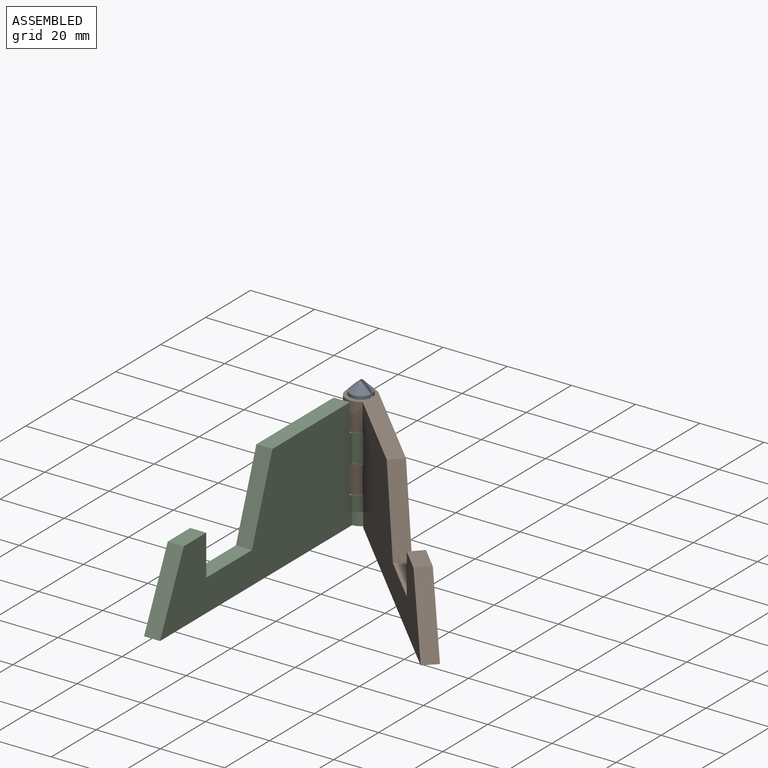
[diagram: assembled view]
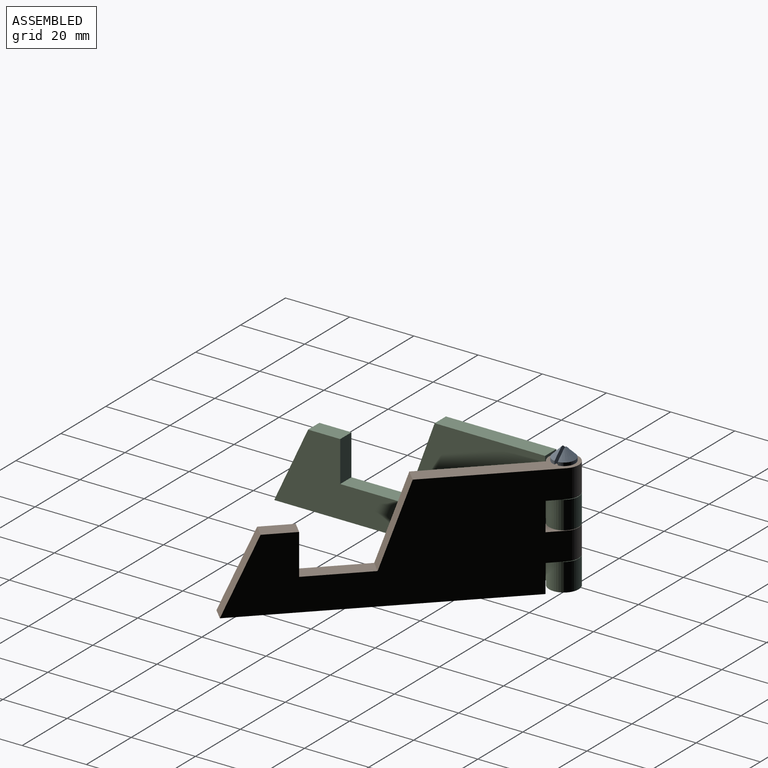
[diagram: assembled view, second angle]
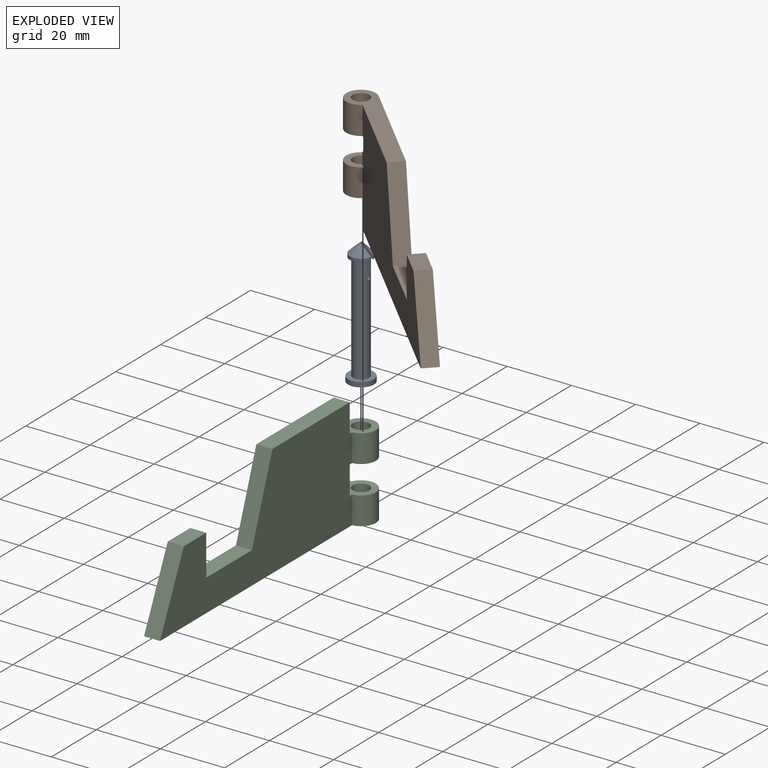
[diagram: exploded view]
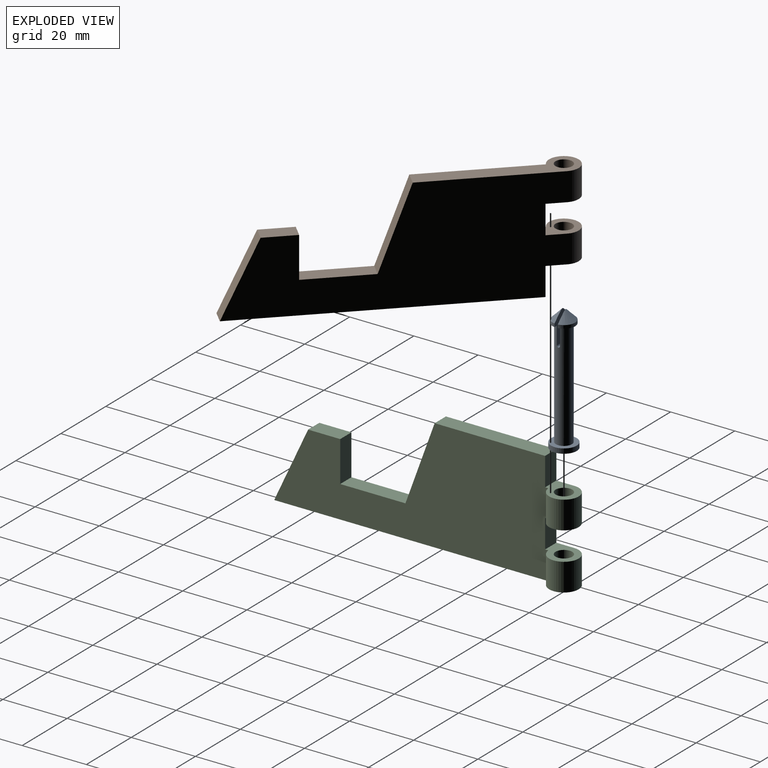
[diagram: exploded view, second angle]
ASSEMBLY  parts=3 mates=2
PART A: 13 faces, bbox 8x8x39 mm
  f0: cylinder r=3.5mm len=6.93mm, axis (0,0,-1), area 10mm2, adj f1,f2,f11
  f1: plane 6.93x3mm, normal (0,0,-1), area 8.4mm2, adj f0,f8,f11
  f2: cone r=3.5mm half-angle=45deg, axis (0,0,-1), area 22.3mm2, adj f0,f11
  f3: plane 8x8mm, normal (0,0,1), area 30.6mm2, adj f4,f8
  f4: cylinder r=4mm len=8mm, axis (0,0,-1), area 37.7mm2, adj f3,f5
  f5: plane 8x8mm, normal (0,0,-1), area 50.3mm2, adj f4
  f6: cylinder r=3.5mm len=6.93mm, axis (0,0,-1), area 10mm2, adj f7,f9,f10
  f7: plane 6.93x3mm, normal (0,0,-1), area 8.4mm2, adj f6,f8,f10
  f8: cylinder r=2.5mm len=33.5mm, axis (0,0,-1), area 514.6mm2, adj f1,f3,f7,f10,f11,f12
  f9: cone r=3.5mm half-angle=45deg, axis (0,0,-1), area 22.3mm2, adj f6,f10
  f10: plane 9.5x6.93mm, normal (0,-1,0), area 45.3mm2, adj f6,f7,f8,f9,f12
  f11: plane 9.5x6.93mm, normal (0,1,0), area 45.3mm2, adj f0,f1,f2,f8,f12
  f12: cylinder r=0.5mm len=5mm, axis (1,0,0), area 7.8mm2, adj f8,f10,f11
PART B: 18 faces, bbox 9.2x94.6x35 mm
  f0: plane 85.42x35mm, normal (1,0,0), area 1976.4mm2, adj f1,f3,f5,f6,f7,f8,f9,f10
  f1: cylinder r=4.6mm len=9.2mm, axis (0,0,-1), area 184mm2, adj f0,f4,f15,f17
  f2: cylinder r=2.6mm len=8.65mm, axis (0,0,-1), area 141.3mm2, adj f15,f17
  f3: plane 84.42x5mm, normal (0,0,-1), area 422.1mm2, adj f0,f4,f10,f16
  f4: plane 90x35mm, normal (-1,0,0), area 2056.1mm2, adj f1,f3,f5,f6,f7,f8,f9,f10
  f5: plane 44.6x9.2mm, normal (0,0,1), area 226.8mm2, adj f0,f4,f6,f11,f12
  f6: plane 25x9.1mm, normal (0,0.94,0.34), area 133mm2, adj f0,f4,f5,f7
  f7: plane 20.34x5mm, normal (0,0,1), area 101.7mm2, adj f0,f4,f6,f8
  f8: plane 12.66x5mm, normal (0,-1,0), area 63.3mm2, adj f0,f4,f7,f9
  f9: plane 10x5mm, normal (0,0,1), area 50mm2, adj f0,f4,f8,f10
  f10: plane 22.66x10.57mm, normal (0,0.91,0.42), area 125mm2, adj f0,f3,f4,f9
  f11: cylinder r=4.6mm len=9.2mm, axis (0,0,-1), area 186.2mm2, adj f0,f4,f5,f13
  f12: cylinder r=2.6mm len=8.75mm, axis (0,0,-1), area 142.9mm2, adj f5,f13
  f13: plane 10.18x9.2mm, normal (0,0,-1), area 54.7mm2, adj f0,f4,f11,f12,f14
  f14: plane 8.85x5mm, normal (0,-1,0), area 44.3mm2, adj f0,f4,f13,f17
  f15: plane 10.18x9.2mm, normal (0,0,-1), area 54.7mm2, adj f0,f1,f2,f4,f16
  f16: plane 8.75x5mm, normal (0,-1,0), area 43.8mm2, adj f0,f3,f4,f15
  f17: plane 10.18x9.2mm, normal (0,0,1), area 54.7mm2, adj f0,f1,f2,f4,f14
PART C: 20 faces, bbox 9.2x94.6x35 mm
  f0: plane 85.42x35mm, normal (1,0,0), area 1976.3mm2, adj f2,f3,f5,f6,f7,f8,f9,f10
  f1: cylinder r=2.6mm len=7.05mm, axis (0,0,-1), area 115.2mm2, adj f16,f19
  f2: cylinder r=4.6mm len=9.2mm, axis (0,0,-1), area 184mm2, adj f0,f12,f13,f18
  f3: cylinder r=4.6mm len=9.2mm, axis (0,0,-1), area 184mm2, adj f0,f6,f12,f19
  f4: cylinder r=2.6mm len=8.65mm, axis (0,0,-1), area 141.3mm2, adj f13,f18
  f5: plane 34.42x5mm, normal (0,0,1), area 172.1mm2, adj f0,f7,f12,f15
  f6: plane 94.6x9.2mm, normal (0,0,-1), area 447.8mm2, adj f0,f3,f11,f12,f17
  f7: plane 25x9.1mm, normal (0,-0.94,0.34), area 133mm2, adj f0,f5,f8,f12
  f8: plane 20.34x5mm, normal (0,0,1), area 101.7mm2, adj f0,f7,f9,f12
  f9: plane 12.66x5mm, normal (0,1,0), area 63.3mm2, adj f0,f8,f10,f12
  f10: plane 10x5mm, normal (0,0,1), area 50mm2, adj f0,f9,f11,f12
  f11: plane 22.66x10.57mm, normal (0,-0.91,0.42), area 125mm2, adj f0,f6,f10,f12
  f12: plane 90x35mm, normal (-1,0,0), area 2055.5mm2, adj f2,f3,f5,f6,f7,f8,f9,f10
  f13: plane 10.18x9.2mm, normal (0,0,-1), area 54.7mm2, adj f0,f2,f4,f12,f14
  f14: plane 8.85x5mm, normal (0,1,0), area 44.3mm2, adj f0,f12,f13,f19
  f15: plane 8.85x5mm, normal (0,1,0), area 44.3mm2, adj f0,f5,f12,f18
  f16: plane 8x8mm, normal (0,0,-1), area 29mm2, adj f1,f17
  f17: cylinder r=4mm len=8mm, axis (0,0,-1), area 40.2mm2, adj f6,f16
  f18: plane 10.18x9.2mm, normal (0,0,1), area 54.7mm2, adj f0,f2,f4,f12,f15
  f19: plane 10.18x9.2mm, normal (0,0,1), area 54.7mm2, adj f0,f1,f3,f12,f14
PLACE A t=(4.51,-0.04,0.1)mm
PLACE B rot(axis=(0,0,-1),135deg) t=(-27.59,38.57,0)mm
PLACE C t=(-0.09,-0.04,0)mm
MATE revolute A.f0 <-> C.f1  axis (0,0,1) through (4.51,-0.04,1.6)mm
MATE revolute B.f1 <-> C.f1  axis (0,0,-1) through (4.51,-0.04,26.25)mm
